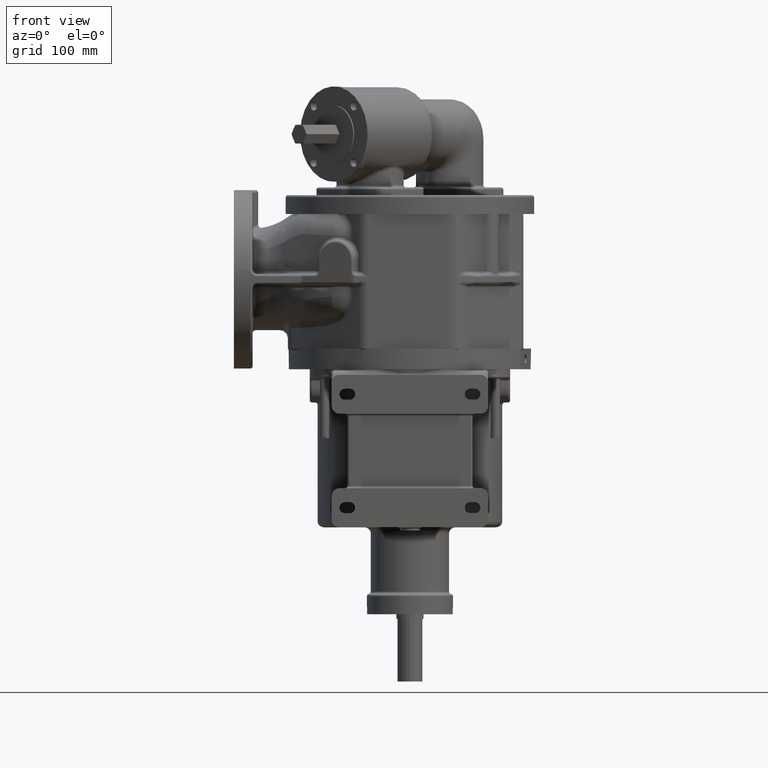
[diagram: clean part render]
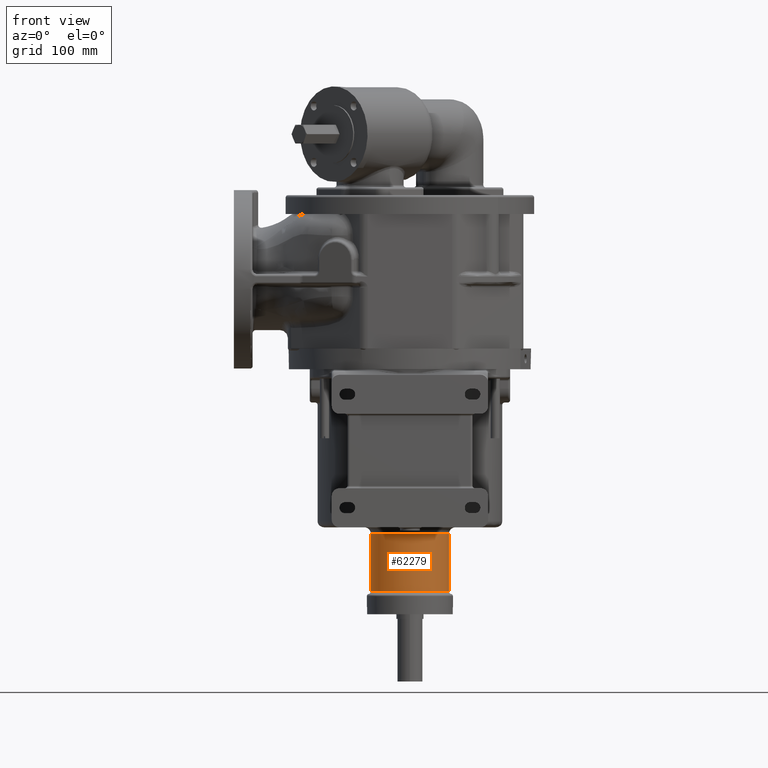
[diagram: same view with one face highlighted and labeled with its STEP entity id]
A machine part, front view. The second image highlights one B-rep face of the part: STEP entity #62279.
In plain terms, the highlighted cylindrical surface (partial cylindrical patch) has radius 50 mm, axis along (0, 0, 1).
Its self-contained STEP definition (entity closure, byte-faithful):
#16167=CARTESIAN_POINT('',(3.479026635829E-14,-3.479022635829E-14,
-3.140839202169E2));
#16168=DIRECTION('',(0.E0,0.E0,1.E0));
#16169=DIRECTION('',(-1.E0,0.E0,0.E0));
#16170=AXIS2_PLACEMENT_3D('',#16167,#16168,#16169);
#16172=CARTESIAN_POINT('',(2.571760278209E-14,-2.571756278209E-14,-2.4E2));
#16173=DIRECTION('',(0.E0,0.E0,1.E0));
#16174=DIRECTION('',(-1.E0,0.E0,0.E0));
#16175=AXIS2_PLACEMENT_3D('',#16172,#16173,#16174);
#16212=DIRECTION('',(0.E0,-1.391029050617E-11,-1.E0));
#16213=VECTOR('',#16212,7.408392021690E1);
#16214=CARTESIAN_POINT('',(5.E1,-1.226755123272E-11,-2.4E2));
#16215=LINE('',#16214,#16213);
#16221=DIRECTION('',(0.E0,1.391011827562E-11,-1.E0));
#16222=VECTOR('',#16221,7.408392021690E1);
#16223=CARTESIAN_POINT('',(-5.E1,1.221212355610E-11,-2.4E2));
#16224=LINE('',#16223,#16222);
#24758=CARTESIAN_POINT('',(-5.E1,-4.091346035402E-14,-3.140839202169E2));
#24759=CARTESIAN_POINT('',(5.E1,-3.479022635829E-14,-3.140839202169E2));
#24760=VERTEX_POINT('',#24758);
#24761=VERTEX_POINT('',#24759);
#24818=CARTESIAN_POINT('',(-5.E1,-3.184079677783E-14,-2.4E2));
#24819=CARTESIAN_POINT('',(5.E1,-2.571756278209E-14,-2.4E2));
#24820=VERTEX_POINT('',#24818);
#24821=VERTEX_POINT('',#24819);
#62265=CARTESIAN_POINT('',(4.026640675596E-14,-4.026636675596E-14,-3.588E2));
#62266=DIRECTION('',(0.E0,0.E0,1.E0));
#62267=DIRECTION('',(1.E0,0.E0,0.E0));
#62268=AXIS2_PLACEMENT_3D('',#62265,#62266,#62267);
#62269=CYLINDRICAL_SURFACE('',#62268,5.E1);
#62271=ORIENTED_EDGE('',*,*,#62270,.F.);
#62273=ORIENTED_EDGE('',*,*,#62272,.F.);
#62274=ORIENTED_EDGE('',*,*,#62255,.T.);
#62276=ORIENTED_EDGE('',*,*,#62275,.T.);
#62277=EDGE_LOOP('',(#62271,#62273,#62274,#62276));
#62278=FACE_OUTER_BOUND('',#62277,.F.);
#62279=ADVANCED_FACE('',(#62278),#62269,.T.);
#16171=CIRCLE('',#16170,5.E1);
#16176=CIRCLE('',#16175,5.E1);
#62255=EDGE_CURVE('',#24820,#24821,#16176,.T.);
#62270=EDGE_CURVE('',#24760,#24761,#16171,.T.);
#62272=EDGE_CURVE('',#24820,#24760,#16224,.T.);
#62275=EDGE_CURVE('',#24821,#24761,#16215,.T.);